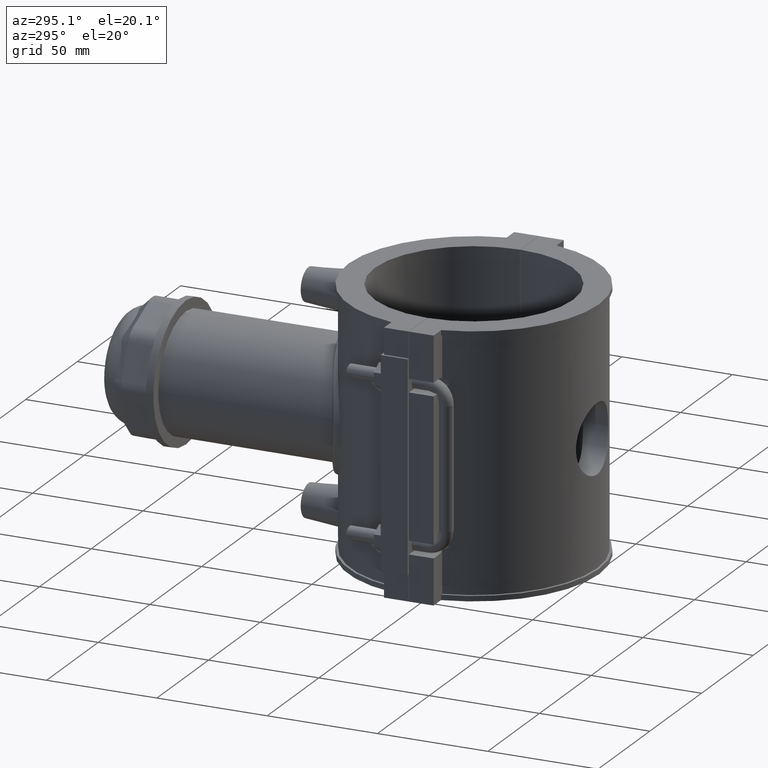
[diagram: clean part render]
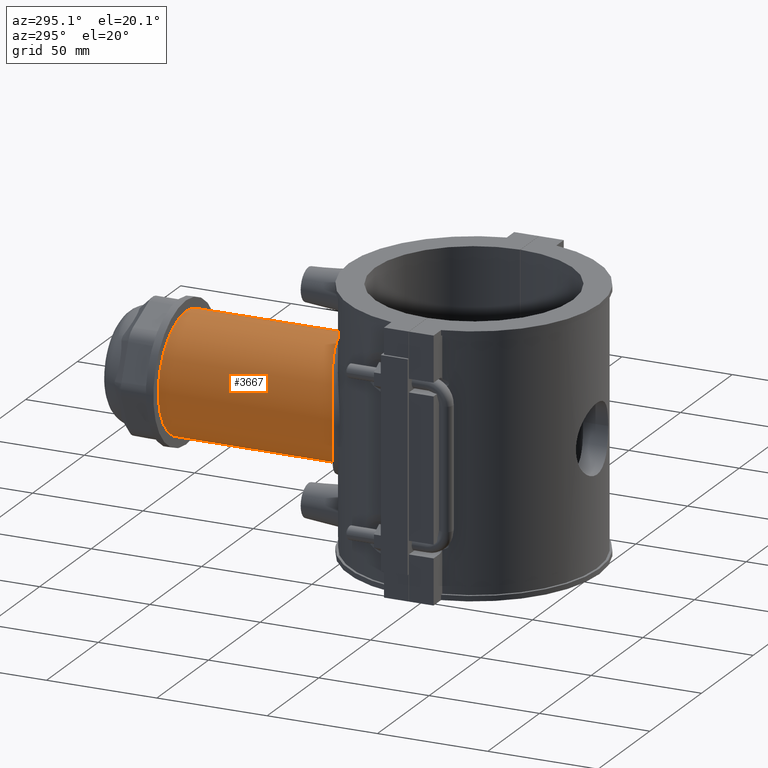
[diagram: same view with one face highlighted and labeled with its STEP entity id]
A machine part, auxiliary view. The second image highlights one B-rep face of the part: STEP entity #3667.
In plain terms, the highlighted cylindrical surface (bore or boss wall) has radius 26.775 mm, axis along (0, 1, 0).
Its self-contained STEP definition (entity closure, byte-faithful):
#819=CIRCLE('',#3915,26.775);
#913=FACE_BOUND('',#1254,.T.);
#1022=FACE_OUTER_BOUND('',#1253,.T.);
#1253=EDGE_LOOP('',(#2748,#2749,#2750));
#1254=EDGE_LOOP('',(#2751));
#1464=B_SPLINE_CURVE_WITH_KNOTS('',3,(#5280,#5281,#5282,#5283,#5284,#5285,
#5286,#5287),.UNSPECIFIED.,.F.,.F.,(4,2,2,4),(0.,0.23978623097275,0.4795724619455,
0.945568926322873),.UNSPECIFIED.);
#1465=B_SPLINE_CURVE_WITH_KNOTS('',3,(#5288,#5289,#5290,#5291,#5292,#5293,
#5294,#5295,#5296,#5297,#5298,#5299,#5300,#5301,#5302,#5303,#5304,#5305,
#5306,#5307,#5308,#5309,#5310,#5311,#5312,#5313,#5314,#5315,#5316,#5317,
#5318,#5319),.UNSPECIFIED.,.F.,.F.,(4,2,2,2,2,2,2,2,2,2,2,2,2,2,2,4),(2.8871768996884,
3.35317336406577,3.59295959503852,3.83274582601127,4.07253205698402,4.31231828795677,
4.79189074990227,5.27050474445959,5.50981174173825,5.74911873901691,5.98842573629557,
6.22773273357423,6.70634672813155,7.18591919007705,7.4257054210498,7.66549165202255),
 .UNSPECIFIED.);
#1506=B_SPLINE_CURVE_WITH_KNOTS('',3,(#6054,#6055,#6056,#6057,#6058,#6059,
#6060,#6061,#6062,#6063,#6064,#6065,#6066,#6067,#6068,#6069,#6070,#6071,
#6072,#6073,#6074,#6075,#6076,#6077,#6078,#6079,#6080,#6081,#6082,#6083,
#6084,#6085,#6086,#6087,#6088,#6089,#6090,#6091,#6092,#6093,#6094,#6095,
#6096,#6097,#6098,#6099,#6100,#6101,#6102,#6103,#6104,#6105,#6106,#6107,
#6108,#6109,#6110,#6111,#6112,#6113,#6114,#6115),.UNSPECIFIED.,.F.,.F.,
(4,2,2,2,2,2,2,2,2,2,2,2,2,2,2,2,2,2,2,2,2,2,2,2,2,2,2,2,2,2,4),(0.884189250185695,
1.02672849381853,1.54009274072779,2.05345698763705,2.56584796086913,3.0782389341012,
3.59062990733328,4.10302088056535,4.61541185379742,5.1278028270295,5.64019380026157,
6.15258477349364,6.66594902040291,7.17931326731217,7.69267751422144,8.2060417611307,
8.71940600803996,9.23277025494923,9.74613450185849,10.2594987487678,10.7718897219998,
11.2842806952319,11.796671668464,12.3090626416961,12.8214536149281,13.3338445881602,
13.8462355613923,14.3586265346243,14.8719907815336,15.3853550284429,15.5278942720757),
 .UNSPECIFIED.);
#1574=VERTEX_POINT('',#5220);
#1577=VERTEX_POINT('',#5270);
#1578=VERTEX_POINT('',#5279);
#1663=VERTEX_POINT('',#6116);
#1930=EDGE_CURVE('',#1578,#1577,#1464,.T.);
#1931=EDGE_CURVE('',#1574,#1578,#1465,.T.);
#2072=EDGE_CURVE('',#1574,#1577,#1506,.T.);
#2073=EDGE_CURVE('',#1663,#1663,#819,.T.);
#2748=ORIENTED_EDGE('',*,*,#2072,.F.);
#2749=ORIENTED_EDGE('',*,*,#1931,.T.);
#2750=ORIENTED_EDGE('',*,*,#1930,.T.);
#2751=ORIENTED_EDGE('',*,*,#2073,.F.);
#3559=CYLINDRICAL_SURFACE('',#3914,26.775);
#3667=ADVANCED_FACE('',(#1022,#913),#3559,.T.);
#3914=AXIS2_PLACEMENT_3D('',#6053,#4392,#4393);
#3915=AXIS2_PLACEMENT_3D('',#6117,#4394,#4395);
#4392=DIRECTION('center_axis',(0.,1.,3.06161699786838E-16));
#4393=DIRECTION('ref_axis',(0.,0.,1.));
#4394=DIRECTION('center_axis',(0.,1.,3.06161699786838E-16));
#4395=DIRECTION('ref_axis',(1.,0.,0.));
#5220=CARTESIAN_POINT('',(25.2413386704774,52.2550269938246,8.93171020139377));
#5270=CARTESIAN_POINT('',(25.2413386704774,52.2550269938246,-8.93171020139377));
#5279=CARTESIAN_POINT('',(23.6780621039814,61.,-12.5));
#5280=CARTESIAN_POINT('Ctrl Pts',(23.6780621039814,61.,-12.5));
#5281=CARTESIAN_POINT('Ctrl Pts',(23.6780621039814,60.2007125634242,-12.5));
#5282=CARTESIAN_POINT('Ctrl Pts',(23.7197057853433,59.3790608929421,-12.4221218699072));
#5283=CARTESIAN_POINT('Ctrl Pts',(23.885897813585,57.7535995854817,-12.0994809729272));
#5284=CARTESIAN_POINT('Ctrl Pts',(24.0101974233068,56.9497401731701,-11.8548409108701));
#5285=CARTESIAN_POINT('Ctrl Pts',(24.4606302428727,54.6906209075011,-10.9112227517647));
#5286=CARTESIAN_POINT('Ctrl Pts',(24.86661222375,53.3366309215302,-9.99070080203466));
#5287=CARTESIAN_POINT('Ctrl Pts',(25.2413386704889,52.2550269938485,-8.93171020139378));
#5288=CARTESIAN_POINT('Ctrl Pts',(25.2413386704889,52.2550269938485,8.93171020139376));
#5289=CARTESIAN_POINT('Ctrl Pts',(24.86661222375,53.3366309215302,9.99070080203465));
#5290=CARTESIAN_POINT('Ctrl Pts',(24.4606302428727,54.6906209075011,10.9112227517647));
#5291=CARTESIAN_POINT('Ctrl Pts',(24.0101974233068,56.9497401731701,11.8548409108701));
#5292=CARTESIAN_POINT('Ctrl Pts',(23.885897813585,57.7535995854817,12.0994809729272));
#5293=CARTESIAN_POINT('Ctrl Pts',(23.7197057853433,59.3790608929421,12.4221218699072));
#5294=CARTESIAN_POINT('Ctrl Pts',(23.6780621039814,60.2007125634242,12.5));
#5295=CARTESIAN_POINT('Ctrl Pts',(23.6780621039814,61.7992874365758,12.5));
#5296=CARTESIAN_POINT('Ctrl Pts',(23.7197057853433,62.6209391070579,12.4221218699072));
#5297=CARTESIAN_POINT('Ctrl Pts',(23.885897813585,64.2464004145183,12.0994809729272));
#5298=CARTESIAN_POINT('Ctrl Pts',(24.0101974233068,65.0502598268298,11.8548409108701));
#5299=CARTESIAN_POINT('Ctrl Pts',(24.4692944888274,67.3528341075608,10.8930718989348));
#5300=CARTESIAN_POINT('Ctrl Pts',(24.8902594337894,68.7415252216274,9.93614430803632));
#5301=CARTESIAN_POINT('Ctrl Pts',(25.6569953274399,70.9339512392191,7.74371829044461));
#5302=CARTESIAN_POINT('Ctrl Pts',(26.0569459295314,71.8925083616202,6.35425381528682));
#5303=CARTESIAN_POINT('Ctrl Pts',(26.4785621311015,72.8552462112391,4.0492542187518));
#5304=CARTESIAN_POINT('Ctrl Pts',(26.5902163221583,73.0999782519526,3.24457956005673));
#5305=CARTESIAN_POINT('Ctrl Pts',(26.7384806625623,73.4224078898599,1.61881204579229));
#5306=CARTESIAN_POINT('Ctrl Pts',(26.775,73.5,0.797689990928868));
#5307=CARTESIAN_POINT('Ctrl Pts',(26.775,73.5,-0.797689990928862));
#5308=CARTESIAN_POINT('Ctrl Pts',(26.7384806625623,73.4224078898599,-1.61881204579228));
#5309=CARTESIAN_POINT('Ctrl Pts',(26.5902163221583,73.0999782519526,-3.24457956005673));
#5310=CARTESIAN_POINT('Ctrl Pts',(26.4785621311015,72.8552462112391,-4.04925421875179));
#5311=CARTESIAN_POINT('Ctrl Pts',(26.0569459295314,71.8925083616202,-6.35425381528681));
#5312=CARTESIAN_POINT('Ctrl Pts',(25.6569953274399,70.9339512392191,-7.74371829044461));
#5313=CARTESIAN_POINT('Ctrl Pts',(24.8902594337894,68.7415252216274,-9.93614430803632));
#5314=CARTESIAN_POINT('Ctrl Pts',(24.4692944888273,67.3528341075608,-10.8930718989348));
#5315=CARTESIAN_POINT('Ctrl Pts',(24.0101974233068,65.0502598268298,-11.8548409108701));
#5316=CARTESIAN_POINT('Ctrl Pts',(23.885897813585,64.2464004145183,-12.0994809729272));
#5317=CARTESIAN_POINT('Ctrl Pts',(23.7197057853433,62.6209391070579,-12.4221218699072));
#5318=CARTESIAN_POINT('Ctrl Pts',(23.6780621039814,61.7992874365758,-12.5));
#5319=CARTESIAN_POINT('Ctrl Pts',(23.6780621039814,61.,-12.5));
#6053=CARTESIAN_POINT('Origin',(0.,89.325,1.35706173430516E-14));
#6054=CARTESIAN_POINT('Ctrl Pts',(25.2413386704858,52.2550269937911,8.93171020140248));
#6055=CARTESIAN_POINT('Ctrl Pts',(25.0760240251317,52.3348808029006,9.39889541638169));
#6056=CARTESIAN_POINT('Ctrl Pts',(24.8977800448439,52.420015075897,9.86133444751021));
#6057=CARTESIAN_POINT('Ctrl Pts',(24.0205045253944,52.8327944564397,11.9620613228521));
#6058=CARTESIAN_POINT('Ctrl Pts',(23.1699969532652,53.2163937273955,13.5317154272648));
#6059=CARTESIAN_POINT('Ctrl Pts',(21.2140143143899,54.0259096784558,16.4292932972868));
#6060=CARTESIAN_POINT('Ctrl Pts',(20.1082959771635,54.4510411519475,17.7572721553761));
#6061=CARTESIAN_POINT('Ctrl Pts',(17.7595007772698,55.2616840467427,20.1060673552698));
#6062=CARTESIAN_POINT('Ctrl Pts',(16.4326119937272,55.6770326718015,21.2114817635876));
#6063=CARTESIAN_POINT('Ctrl Pts',(13.5345396493294,56.4515627818206,23.168382165925));
#6064=CARTESIAN_POINT('Ctrl Pts',(11.9632928238325,56.8101212212733,24.0200210129507));
#6065=CARTESIAN_POINT('Ctrl Pts',(8.67160142553016,57.4048219136669,25.3945885607132));
#6066=CARTESIAN_POINT('Ctrl Pts',(6.94809250869672,57.641064706949,25.9186125520985));
#6067=CARTESIAN_POINT('Ctrl Pts',(3.46630764737261,57.9547499464772,26.6089304076598));
#6068=CARTESIAN_POINT('Ctrl Pts',(1.70796991077358,58.032,26.775));
#6069=CARTESIAN_POINT('Ctrl Pts',(-1.70796991077358,58.032,26.775));
#6070=CARTESIAN_POINT('Ctrl Pts',(-3.46630764737261,57.9547499464772,26.6089304076598));
#6071=CARTESIAN_POINT('Ctrl Pts',(-6.94809250869672,57.641064706949,25.9186125520985));
#6072=CARTESIAN_POINT('Ctrl Pts',(-8.67160142553016,57.4048219136669,25.3945885607132));
#6073=CARTESIAN_POINT('Ctrl Pts',(-11.9632928238325,56.8101212212733,24.0200210129507));
#6074=CARTESIAN_POINT('Ctrl Pts',(-13.5345396493294,56.4515627818206,23.168382165925));
#6075=CARTESIAN_POINT('Ctrl Pts',(-16.4326119937272,55.6770326718015,21.2114817635876));
#6076=CARTESIAN_POINT('Ctrl Pts',(-17.7595007772698,55.2616840467427,20.1060673552698));
#6077=CARTESIAN_POINT('Ctrl Pts',(-20.1082959771635,54.4510411519475,17.7572721553761));
#6078=CARTESIAN_POINT('Ctrl Pts',(-21.2140143143899,54.0259096784558,16.4292932972868));
#6079=CARTESIAN_POINT('Ctrl Pts',(-23.1699969532652,53.2163937273955,13.5317154272648));
#6080=CARTESIAN_POINT('Ctrl Pts',(-24.0205045253944,52.8327944564397,11.9620613228521));
#6081=CARTESIAN_POINT('Ctrl Pts',(-25.3937610878862,52.1866439819032,8.6736565929714));
#6082=CARTESIAN_POINT('Ctrl Pts',(-25.9176002863459,51.9243779518539,6.95180117817221));
#6083=CARTESIAN_POINT('Ctrl Pts',(-26.608349436428,51.5738186591046,3.47063163382641));
#6084=CARTESIAN_POINT('Ctrl Pts',(-26.775,51.4860408169049,1.71121415636423));
#6085=CARTESIAN_POINT('Ctrl Pts',(-26.775,51.4860408169049,-1.71121415636419));
#6086=CARTESIAN_POINT('Ctrl Pts',(-26.608349436428,51.5738186591046,-3.47063163382638));
#6087=CARTESIAN_POINT('Ctrl Pts',(-25.9176002863459,51.9243779518539,-6.95180117817218));
#6088=CARTESIAN_POINT('Ctrl Pts',(-25.3937610878862,52.1866439819032,-8.67365659297137));
#6089=CARTESIAN_POINT('Ctrl Pts',(-24.0205045253944,52.8327944564397,-11.9620613228521));
#6090=CARTESIAN_POINT('Ctrl Pts',(-23.1699969532652,53.2163937273955,-13.5317154272648));
#6091=CARTESIAN_POINT('Ctrl Pts',(-21.2140143143899,54.0259096784558,-16.4292932972868));
#6092=CARTESIAN_POINT('Ctrl Pts',(-20.1082959771635,54.4510411519475,-17.7572721553761));
#6093=CARTESIAN_POINT('Ctrl Pts',(-17.7595007772698,55.2616840467427,-20.1060673552698));
#6094=CARTESIAN_POINT('Ctrl Pts',(-16.4326119937272,55.6770326718015,-21.2114817635876));
#6095=CARTESIAN_POINT('Ctrl Pts',(-13.5345396493294,56.4515627818206,-23.168382165925));
#6096=CARTESIAN_POINT('Ctrl Pts',(-11.9632928238325,56.8101212212733,-24.0200210129507));
#6097=CARTESIAN_POINT('Ctrl Pts',(-8.67160142553017,57.4048219136669,-25.3945885607132));
#6098=CARTESIAN_POINT('Ctrl Pts',(-6.94809250869673,57.641064706949,-25.9186125520985));
#6099=CARTESIAN_POINT('Ctrl Pts',(-3.46630764737262,57.9547499464772,-26.6089304076598));
#6100=CARTESIAN_POINT('Ctrl Pts',(-1.70796991077358,58.032,-26.775));
#6101=CARTESIAN_POINT('Ctrl Pts',(1.70796991077358,58.032,-26.775));
#6102=CARTESIAN_POINT('Ctrl Pts',(3.46630764737261,57.9547499464772,-26.6089304076598));
#6103=CARTESIAN_POINT('Ctrl Pts',(6.94809250869672,57.641064706949,-25.9186125520985));
#6104=CARTESIAN_POINT('Ctrl Pts',(8.67160142553016,57.4048219136669,-25.3945885607132));
#6105=CARTESIAN_POINT('Ctrl Pts',(11.9632928238325,56.8101212212733,-24.0200210129507));
#6106=CARTESIAN_POINT('Ctrl Pts',(13.5345396493294,56.4515627818206,-23.168382165925));
#6107=CARTESIAN_POINT('Ctrl Pts',(16.4326119937272,55.6770326718015,-21.2114817635876));
#6108=CARTESIAN_POINT('Ctrl Pts',(17.7595007772698,55.2616840467427,-20.1060673552698));
#6109=CARTESIAN_POINT('Ctrl Pts',(20.1082959771635,54.4510411519475,-17.7572721553761));
#6110=CARTESIAN_POINT('Ctrl Pts',(21.2140143143899,54.0259096784558,-16.4292932972868));
#6111=CARTESIAN_POINT('Ctrl Pts',(23.1699969532652,53.2163937273955,-13.5317154272648));
#6112=CARTESIAN_POINT('Ctrl Pts',(24.0205045253944,52.8327944564397,-11.9620613228521));
#6113=CARTESIAN_POINT('Ctrl Pts',(24.8977800448439,52.420015075897,-9.8613344475102));
#6114=CARTESIAN_POINT('Ctrl Pts',(25.0760240251317,52.3348808029006,-9.39889541638168));
#6115=CARTESIAN_POINT('Ctrl Pts',(25.2413386704858,52.2550269937911,-8.93171020140249));
#6116=CARTESIAN_POINT('',(0.,130.5,26.775));
#6117=CARTESIAN_POINT('Origin',(0.,130.5,2.61768253317747E-14));